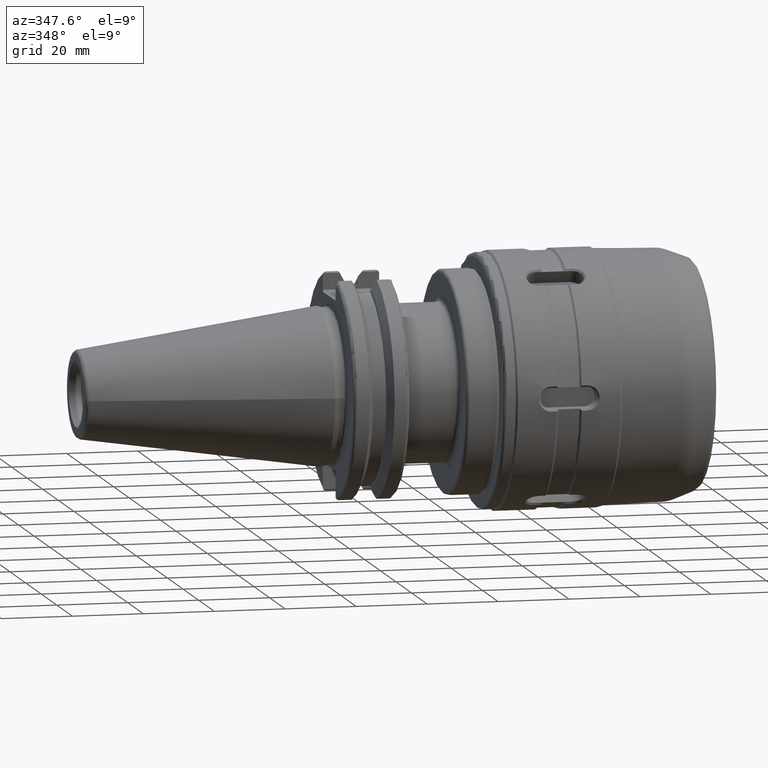
[diagram: clean part render]
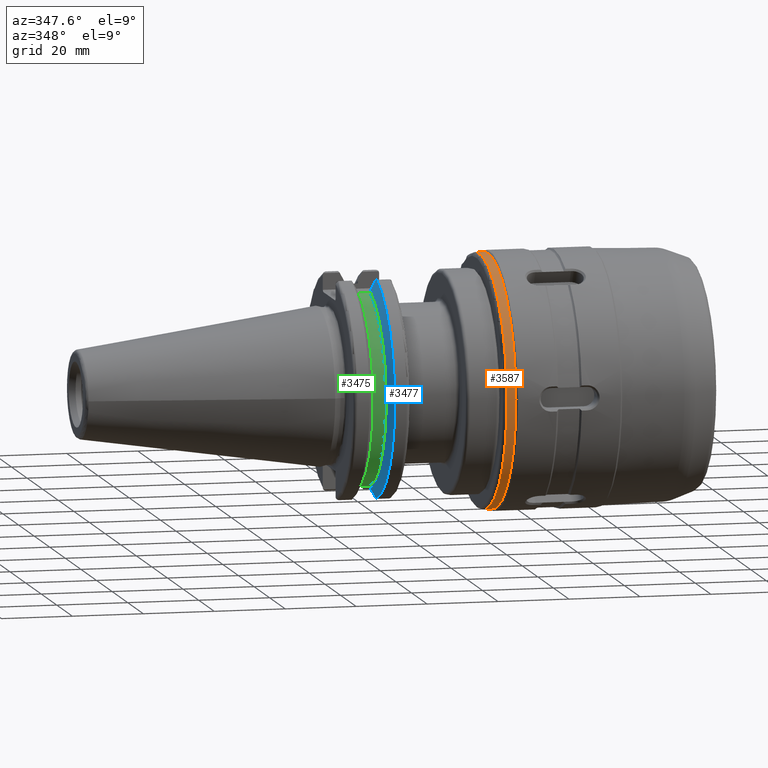
[diagram: same view with three faces highlighted in distinct colors, each labeled with its STEP entity id]
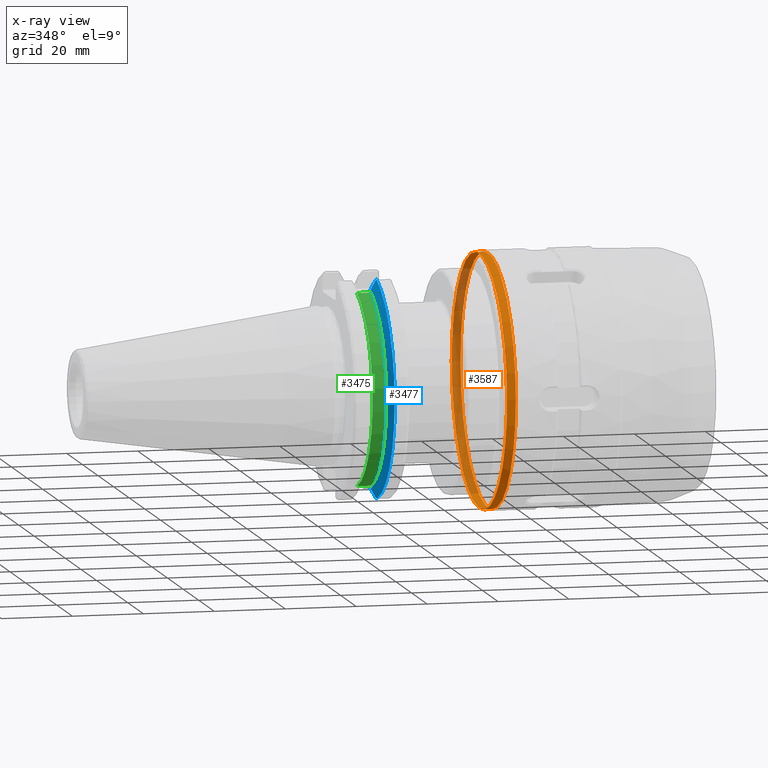
[diagram: x-ray of the same camera — body ghosted, the three highlighted faces saturated]
A machine part, auxiliary view with three faces highlighted in distinct colors.
The next image is the same camera in x-ray (body ghosted, the three faces saturated) — at least one of them is partly hidden behind the body in this view.
Their STEP definitions:

[orange] entity #3587 — the highlighted cylindrical surface (bore or boss wall) has radius 35.5 mm, axis along (1, 0, 0).
#185=CYLINDRICAL_SURFACE('',#4038,35.5);
#480=FACE_OUTER_BOUND('',#692,.T.);
#692=EDGE_LOOP('',(#3312,#3313,#3314,#3315,#3316,#3317,#3318));
#942=LINE('',#7371,#1183);
#1183=VECTOR('',#5047,35.5);
#1381=CIRCLE('',#4034,35.5);
#1382=CIRCLE('',#4035,35.5);
#1384=CIRCLE('',#4037,35.5);
#1385=CIRCLE('',#4039,35.5);
#1386=CIRCLE('',#4040,35.5);
#1747=VERTEX_POINT('',#7359);
#1748=VERTEX_POINT('',#7360);
#1749=VERTEX_POINT('',#7362);
#1750=VERTEX_POINT('',#7367);
#1751=VERTEX_POINT('',#7368);
#2275=EDGE_CURVE('',#1747,#1748,#1381,.T.);
#2276=EDGE_CURVE('',#1748,#1749,#1382,.T.);
#2278=EDGE_CURVE('',#1749,#1747,#1384,.T.);
#2279=EDGE_CURVE('',#1750,#1751,#1385,.T.);
#2280=EDGE_CURVE('',#1751,#1750,#1386,.T.);
#2281=EDGE_CURVE('',#1751,#1748,#942,.T.);
#3312=ORIENTED_EDGE('',*,*,#2279,.F.);
#3313=ORIENTED_EDGE('',*,*,#2280,.F.);
#3314=ORIENTED_EDGE('',*,*,#2281,.T.);
#3315=ORIENTED_EDGE('',*,*,#2275,.F.);
#3316=ORIENTED_EDGE('',*,*,#2278,.F.);
#3317=ORIENTED_EDGE('',*,*,#2276,.F.);
#3318=ORIENTED_EDGE('',*,*,#2281,.F.);
#3587=ADVANCED_FACE('',(#480),#185,.T.);
#4034=AXIS2_PLACEMENT_3D('',#7361,#5033,#5034);
#4035=AXIS2_PLACEMENT_3D('',#7363,#5035,#5036);
#4037=AXIS2_PLACEMENT_3D('',#7365,#5039,#5040);
#4038=AXIS2_PLACEMENT_3D('',#7366,#5041,#5042);
#4039=AXIS2_PLACEMENT_3D('',#7369,#5043,#5044);
#4040=AXIS2_PLACEMENT_3D('',#7370,#5045,#5046);
#5033=DIRECTION('center_axis',(-1.,0.,0.));
#5034=DIRECTION('ref_axis',(0.,-1.,1.83697019872103E-16));
#5035=DIRECTION('center_axis',(-1.,0.,0.));
#5036=DIRECTION('ref_axis',(0.,-1.,1.83697019872103E-16));
#5039=DIRECTION('center_axis',(-1.,0.,0.));
#5040=DIRECTION('ref_axis',(0.,-1.,1.83697019872103E-16));
#5041=DIRECTION('center_axis',(1.,0.,0.));
#5042=DIRECTION('ref_axis',(0.,1.,0.));
#5043=DIRECTION('center_axis',(1.,0.,0.));
#5044=DIRECTION('ref_axis',(0.,0.,-1.));
#5045=DIRECTION('center_axis',(1.,0.,0.));
#5046=DIRECTION('ref_axis',(0.,0.,-1.));
#5047=DIRECTION('',(-1.,0.,0.));
#7359=CARTESIAN_POINT('',(1.,35.5,-1.08687403424328E-14));
#7360=CARTESIAN_POINT('',(1.,-35.5,-4.3474961369731E-15));
#7361=CARTESIAN_POINT('Origin',(1.,0.,0.));
#7362=CARTESIAN_POINT('',(1.,-4.3474961369731E-15,35.5));
#7363=CARTESIAN_POINT('Origin',(1.,0.,0.));
#7365=CARTESIAN_POINT('Origin',(1.,0.,0.));
#7366=CARTESIAN_POINT('Origin',(1.75,0.,0.));
#7367=CARTESIAN_POINT('',(3.5,35.5,0.));
#7368=CARTESIAN_POINT('',(3.5,-35.5,-4.3474961369731E-15));
#7369=CARTESIAN_POINT('Origin',(3.5,0.,0.));
#7370=CARTESIAN_POINT('Origin',(3.5,0.,0.));
#7371=CARTESIAN_POINT('',(1.75,-35.5,-4.3474961369731E-15));

[blue] entity #3477 — the highlighted conical surface has half-angle 60 deg.
#45=(
BOUNDED_CURVE()
B_SPLINE_CURVE(2,(#5493,#5494,#5495),.UNSPECIFIED.,.F.,.F.)
B_SPLINE_CURVE_WITH_KNOTS((3,3),(0.0550586467393779,0.331607789535852),
 .UNSPECIFIED.)
CURVE()
GEOMETRIC_REPRESENTATION_ITEM()
RATIONAL_B_SPLINE_CURVE((1.00031614444922,1.00095203903643,1.))
REPRESENTATION_ITEM('')
);
#46=(
BOUNDED_CURVE()
B_SPLINE_CURVE(2,(#5501,#5502,#5503),.UNSPECIFIED.,.F.,.F.)
B_SPLINE_CURVE_WITH_KNOTS((3,3),(0.,0.276549142795512),.UNSPECIFIED.)
CURVE()
GEOMETRIC_REPRESENTATION_ITEM()
RATIONAL_B_SPLINE_CURVE((1.,1.00095203904184,1.00031614445102))
REPRESENTATION_ITEM('')
);
#53=(
BOUNDED_CURVE()
B_SPLINE_CURVE(2,(#5644,#5645,#5646),.UNSPECIFIED.,.F.,.F.)
B_SPLINE_CURVE_WITH_KNOTS((3,3),(0.,0.0639048713675663),.UNSPECIFIED.)
CURVE()
GEOMETRIC_REPRESENTATION_ITEM()
RATIONAL_B_SPLINE_CURVE((1.,1.00028444218286,1.00047644010578))
REPRESENTATION_ITEM('')
);
#54=(
BOUNDED_CURVE()
B_SPLINE_CURVE(2,(#5652,#5653,#5654),.UNSPECIFIED.,.F.,.F.)
B_SPLINE_CURVE_WITH_KNOTS((3,3),(0.329353533631206,0.393258405001023),
 .UNSPECIFIED.)
CURVE()
GEOMETRIC_REPRESENTATION_ITEM()
RATIONAL_B_SPLINE_CURVE((1.00047644010579,1.00028444218287,1.))
REPRESENTATION_ITEM('')
);
#370=FACE_OUTER_BOUND('',#577,.T.);
#577=EDGE_LOOP('',(#2709,#2710,#2711,#2712,#2713,#2714));
#1284=CIRCLE('',#3826,31.75);
#1297=CIRCLE('',#3852,28.9593772964944);
#1517=VERTEX_POINT('',#5490);
#1518=VERTEX_POINT('',#5492);
#1519=VERTEX_POINT('',#5498);
#1520=VERTEX_POINT('',#5500);
#1549=VERTEX_POINT('',#5642);
#1550=VERTEX_POINT('',#5648);
#1914=EDGE_CURVE('',#1518,#1517,#45,.T.);
#1917=EDGE_CURVE('',#1520,#1519,#46,.T.);
#1963=EDGE_CURVE('',#1549,#1519,#53,.T.);
#1965=EDGE_CURVE('',#1550,#1549,#1284,.T.);
#1966=EDGE_CURVE('',#1518,#1550,#54,.T.);
#1985=EDGE_CURVE('',#1517,#1520,#1297,.T.);
#2709=ORIENTED_EDGE('',*,*,#1963,.F.);
#2710=ORIENTED_EDGE('',*,*,#1965,.F.);
#2711=ORIENTED_EDGE('',*,*,#1966,.F.);
#2712=ORIENTED_EDGE('',*,*,#1914,.T.);
#2713=ORIENTED_EDGE('',*,*,#1985,.T.);
#2714=ORIENTED_EDGE('',*,*,#1917,.T.);
#3381=CONICAL_SURFACE('',#3851,30.3546886482472,1.0471975511966);
#3477=ADVANCED_FACE('',(#370),#3381,.T.);
#3826=AXIS2_PLACEMENT_3D('',#5650,#4457,#4458);
#3851=AXIS2_PLACEMENT_3D('',#5695,#4511,#4512);
#3852=AXIS2_PLACEMENT_3D('',#5696,#4513,#4514);
#4457=DIRECTION('center_axis',(1.,0.,0.));
#4458=DIRECTION('ref_axis',(0.,0.,-1.));
#4511=DIRECTION('center_axis',(1.,0.,0.));
#4512=DIRECTION('ref_axis',(0.,-1.,-1.22464679914735E-16));
#4513=DIRECTION('center_axis',(1.,0.,0.));
#4514=DIRECTION('ref_axis',(0.,0.,-1.));
#5490=CARTESIAN_POINT('',(13.0491,-8.19,27.7771386827498));
#5492=CARTESIAN_POINT('',(14.3815146964874,-8.19,30.1755016258903));
#5493=CARTESIAN_POINT('Ctrl Pts',(14.3815146964874,-8.19,30.1755016258903));
#5494=CARTESIAN_POINT('Ctrl Pts',(13.687736438474,-8.19,28.9303689539668));
#5495=CARTESIAN_POINT('Ctrl Pts',(13.0491,-8.19,27.7771386827498));
#5498=CARTESIAN_POINT('',(14.3815146964874,-8.19,-30.1755016258903));
#5500=CARTESIAN_POINT('',(13.0491,-8.19,-27.7771386827498));
#5501=CARTESIAN_POINT('Ctrl Pts',(13.0491,-8.19,-27.7771386827498));
#5502=CARTESIAN_POINT('Ctrl Pts',(13.68773643849,-8.19,-28.9303689539956));
#5503=CARTESIAN_POINT('Ctrl Pts',(14.3815146964874,-8.19,-30.1755016258903));
#5642=CARTESIAN_POINT('',(14.6602667690756,-8.67204822802686,-30.5427254764662));
#5644=CARTESIAN_POINT('Ctrl Pts',(14.6602667690756,-8.67204822802687,-30.5427254764662));
#5645=CARTESIAN_POINT('Ctrl Pts',(14.5192085187837,-8.42917748262644,-30.357706789263));
#5646=CARTESIAN_POINT('Ctrl Pts',(14.3815146964874,-8.19,-30.1755016258903));
#5648=CARTESIAN_POINT('',(14.6602667690756,-8.67204822802685,30.5427254764662));
#5650=CARTESIAN_POINT('Origin',(14.6602667690756,0.,0.));
#5652=CARTESIAN_POINT('Ctrl Pts',(14.3815146964874,-8.19,30.1755016258903));
#5653=CARTESIAN_POINT('Ctrl Pts',(14.5192085187884,-8.42917748263465,30.3577067892692));
#5654=CARTESIAN_POINT('Ctrl Pts',(14.6602667690756,-8.67204822802686,30.5427254764662));
#5695=CARTESIAN_POINT('Origin',(13.8546833845378,0.,0.));
#5696=CARTESIAN_POINT('Origin',(13.0491,0.,0.));

[green] entity #3475 — the highlighted cylindrical surface (partial cylindrical patch) has radius 28.15 mm, axis along (1, 0, 0).
#161=CYLINDRICAL_SURFACE('',#3846,28.15);
#368=FACE_OUTER_BOUND('',#575,.T.);
#575=EDGE_LOOP('',(#2699,#2700,#2701,#2702));
#757=LINE('',#5489,#998);
#762=LINE('',#5507,#1003);
#998=VECTOR('',#4370,10.);
#1003=VECTOR('',#4377,10.);
#1294=CIRCLE('',#3847,28.15);
#1295=CIRCLE('',#3848,28.15);
#1515=VERTEX_POINT('',#5486);
#1516=VERTEX_POINT('',#5488);
#1521=VERTEX_POINT('',#5504);
#1522=VERTEX_POINT('',#5506);
#1912=EDGE_CURVE('',#1516,#1515,#757,.T.);
#1919=EDGE_CURVE('',#1522,#1521,#762,.T.);
#1982=EDGE_CURVE('',#1516,#1521,#1294,.T.);
#1983=EDGE_CURVE('',#1515,#1522,#1295,.T.);
#2699=ORIENTED_EDGE('',*,*,#1919,.T.);
#2700=ORIENTED_EDGE('',*,*,#1982,.F.);
#2701=ORIENTED_EDGE('',*,*,#1912,.T.);
#2702=ORIENTED_EDGE('',*,*,#1983,.T.);
#3475=ADVANCED_FACE('',(#368),#161,.T.);
#3846=AXIS2_PLACEMENT_3D('',#5690,#4501,#4502);
#3847=AXIS2_PLACEMENT_3D('',#5691,#4503,#4504);
#3848=AXIS2_PLACEMENT_3D('',#5692,#4505,#4506);
#4370=DIRECTION('',(-1.,0.,0.));
#4377=DIRECTION('',(1.,0.,0.));
#4501=DIRECTION('center_axis',(1.,0.,0.));
#4502=DIRECTION('ref_axis',(0.,-1.,-1.22464679914735E-16));
#4503=DIRECTION('center_axis',(1.,0.,0.));
#4504=DIRECTION('ref_axis',(0.,0.,-1.));
#4505=DIRECTION('center_axis',(1.,0.,0.));
#4506=DIRECTION('ref_axis',(0.,0.,-1.));
#5486=CARTESIAN_POINT('',(9.2191,-8.19,26.932255754021));
#5488=CARTESIAN_POINT('',(13.0491,-8.19,26.932255754021));
#5489=CARTESIAN_POINT('',(11.1341,-8.19,26.932255754021));
#5504=CARTESIAN_POINT('',(13.0491,-8.19,-26.932255754021));
#5506=CARTESIAN_POINT('',(9.2191,-8.19,-26.932255754021));
#5507=CARTESIAN_POINT('',(11.1341,-8.19,-26.932255754021));
#5690=CARTESIAN_POINT('Origin',(11.1341,0.,0.));
#5691=CARTESIAN_POINT('Origin',(13.0491,0.,0.));
#5692=CARTESIAN_POINT('Origin',(9.2191,0.,0.));